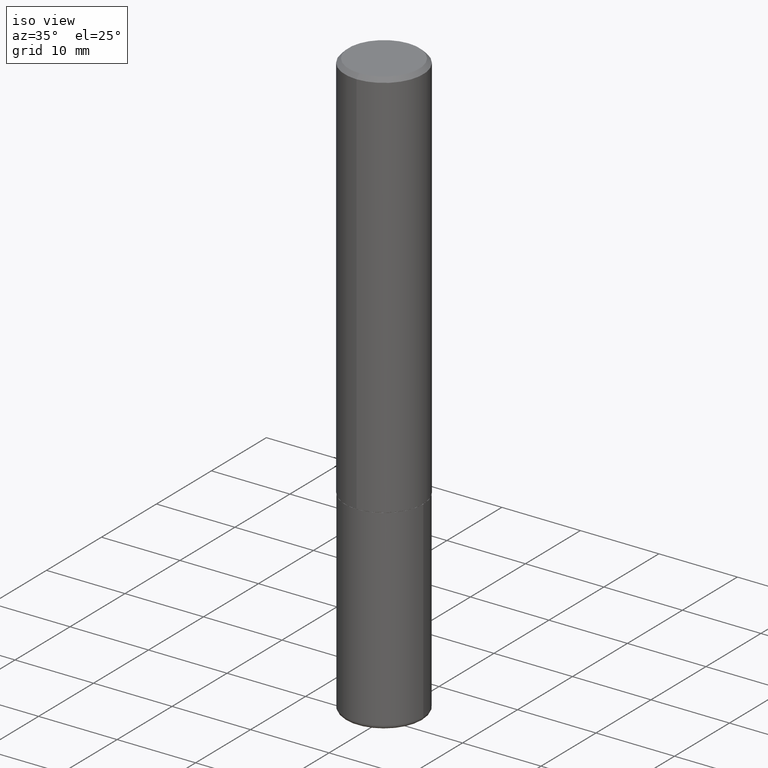
[diagram: clean part render]
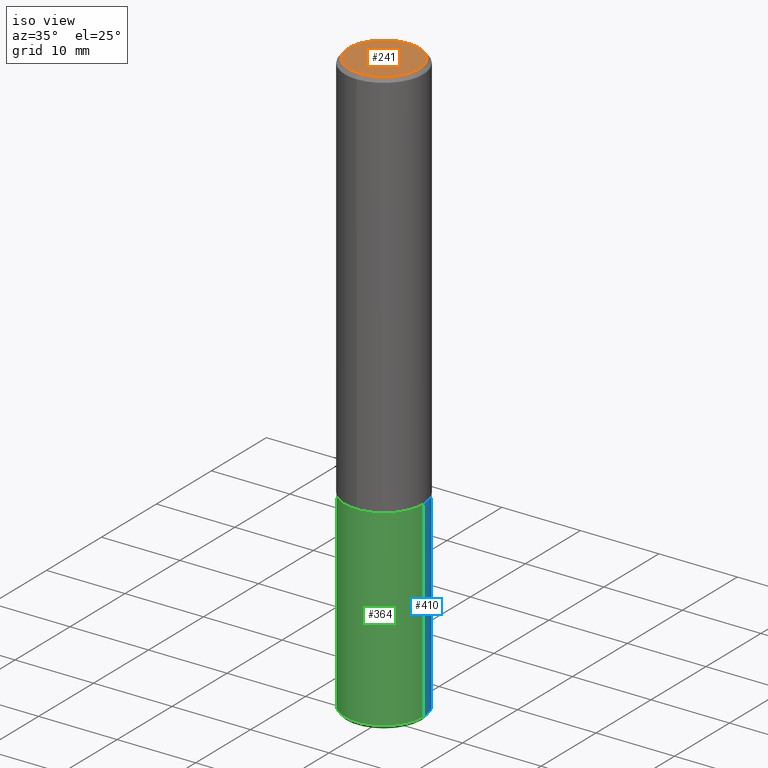
[diagram: same view with three faces highlighted in distinct colors, each labeled with its STEP entity id]
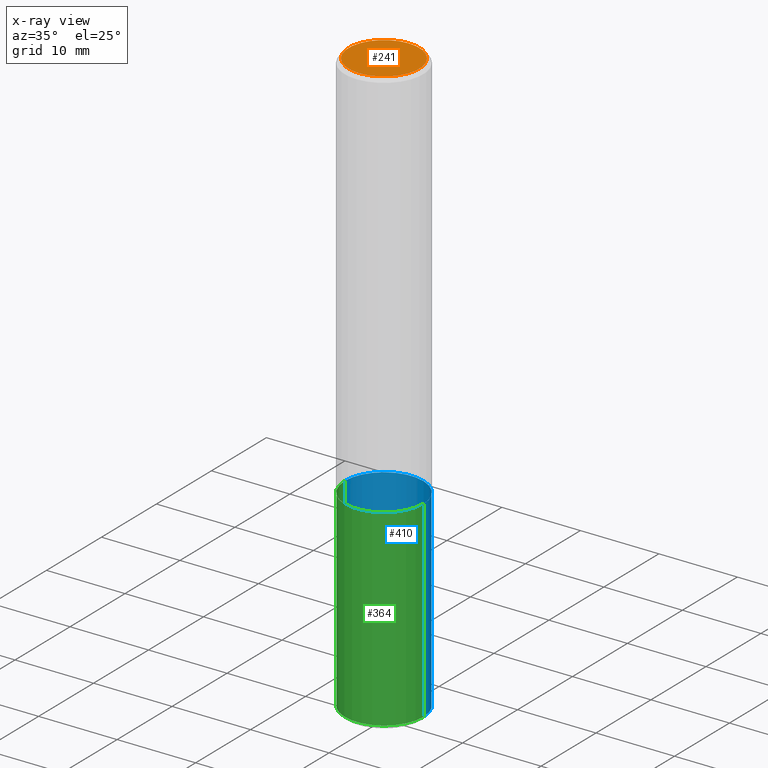
[diagram: x-ray of the same camera — body ghosted, the three highlighted faces saturated]
A machine part, iso view with three faces highlighted in distinct colors.
The next image is the same camera in x-ray (body ghosted, the three faces saturated) — at least one of them is partly hidden behind the body in this view.
Their STEP definitions:

[orange] entity #241 — the highlighted planar face has unit normal (0, -0, -1).
#38 = DIRECTION ( 'NONE',  ( -2.445268841296851437E-29, 3.491767699944464545E-15, 1.000000000000000000 ) ) ;
#57 = CARTESIAN_POINT ( 'NONE',  ( -1.281884050883609900E-15, -0.1768499999999998407, 8.395324101811677409E-16 ) ) ;
#63 = PLANE ( 'NONE',  #171 ) ;
#66 = CARTESIAN_POINT ( 'NONE',  ( -5.428821863719041386E-45, 7.752188435212310874E-31, 2.220132924459896583E-16 ) ) ;
#88 = EDGE_CURVE ( 'NONE', #235, #104, #124, .T. ) ;
#90 = DIRECTION ( 'NONE',  ( 2.445268841296850876E-29, -3.491767699944464940E-15, -1.000000000000000000 ) ) ;
#104 = VERTEX_POINT ( 'NONE', #185 ) ;
#124 = CIRCLE ( 'NONE', #333, 0.1768499999999998407 ) ;
#139 = AXIS2_PLACEMENT_3D ( 'NONE', #66, #233, #195 ) ;
#167 = ORIENTED_EDGE ( 'NONE', *, *, #88, .T. ) ;
#171 = AXIS2_PLACEMENT_3D ( 'NONE', #189, #90, #378 ) ;
#185 = CARTESIAN_POINT ( 'NONE',  ( 1.304766576325678705E-15, 0.1768499999999998407, -3.955058252891884244E-16 ) ) ;
#186 = FACE_OUTER_BOUND ( 'NONE', #264, .T. ) ;
#189 = CARTESIAN_POINT ( 'NONE',  ( 1.234936949548815012E-15, 0.1768499999999998407, -5.065124715121833152E-16 ) ) ;
#195 = DIRECTION ( 'NONE',  ( -6.982962677686265922E-15, -1.000000000000000000, 3.491767699944464940E-15 ) ) ;
#224 = CARTESIAN_POINT ( 'NONE',  ( -5.428821863719041386E-45, 7.752188435212310874E-31, 2.220132924459896583E-16 ) ) ;
#233 = DIRECTION ( 'NONE',  ( -2.445268841296851437E-29, 3.491767699944464545E-15, 1.000000000000000000 ) ) ;
#235 = VERTEX_POINT ( 'NONE', #57 ) ;
#241 = ADVANCED_FACE ( 'NONE', ( #186 ), #63, .F. ) ;
#264 = EDGE_LOOP ( 'NONE', ( #403, #167 ) ) ;
#274 = CIRCLE ( 'NONE', #139, 0.1768499999999998407 ) ;
#310 = DIRECTION ( 'NONE',  ( -6.982962677686265922E-15, -1.000000000000000000, 3.491767699944464940E-15 ) ) ;
#333 = AXIS2_PLACEMENT_3D ( 'NONE', #224, #38, #310 ) ;
#372 = EDGE_CURVE ( 'NONE', #104, #235, #274, .T. ) ;
#378 = DIRECTION ( 'NONE',  ( 6.982962677686265922E-15, 1.000000000000000000, -3.491767699944464940E-15 ) ) ;
#403 = ORIENTED_EDGE ( 'NONE', *, *, #372, .T. ) ;

[blue] entity #410 — the highlighted cylindrical surface (partial cylindrical patch) has radius 5 mm, axis along (-0, 0, 1).
#5 = VERTEX_POINT ( 'NONE', #256 ) ;
#7 = DIRECTION ( 'NONE',  ( 1.000000000000000000, -6.982962677686267499E-15, 0.000000000000000000 ) ) ;
#23 = CARTESIAN_POINT ( 'NONE',  ( -0.1968499999999999694, 1.398703375343756999E-15, -9.682923725166782276E-30 ) ) ;
#26 = CARTESIAN_POINT ( 'NONE',  ( 7.172804555421624566E-29, -1.024086391496083050E-14, -2.933100000000000041 ) ) ;
#36 = CARTESIAN_POINT ( 'NONE',  ( -0.1968500000000000250, -7.158219089893024104E-15, -1.968499999999999694 ) ) ;
#37 = FACE_OUTER_BOUND ( 'NONE', #368, .T. ) ;
#40 = AXIS2_PLACEMENT_3D ( 'NONE', #367, #335, #7 ) ;
#46 = AXIS2_PLACEMENT_3D ( 'NONE', #395, #389, #268 ) ;
#54 = VECTOR ( 'NONE', #343, 39.37007874015748143 ) ;
#60 = DIRECTION ( 'NONE',  ( 1.000000000000000000, -6.982962677686269866E-15, 0.000000000000000000 ) ) ;
#85 = VERTEX_POINT ( 'NONE', #36 ) ;
#95 = EDGE_CURVE ( 'NONE', #5, #244, #304, .T. ) ;
#113 = VECTOR ( 'NONE', #409, 39.37007874015748143 ) ;
#138 = CIRCLE ( 'NONE', #40, 0.1968500000000000250 ) ;
#161 = CYLINDRICAL_SURFACE ( 'NONE', #46, 0.1968499999999999694 ) ;
#169 = EDGE_CURVE ( 'NONE', #5, #354, #276, .T. ) ;
#197 = EDGE_CURVE ( 'NONE', #354, #85, #138, .T. ) ;
#236 = AXIS2_PLACEMENT_3D ( 'NONE', #26, #411, #60 ) ;
#244 = VERTEX_POINT ( 'NONE', #281 ) ;
#256 = CARTESIAN_POINT ( 'NONE',  ( 0.1968499999999999417, -1.161546011806337053E-14, -2.933100000000000041 ) ) ;
#258 = CARTESIAN_POINT ( 'NONE',  ( 0.1968500000000000250, -8.247577218615273316E-15, -1.968499999999999694 ) ) ;
#268 = DIRECTION ( 'NONE',  ( 1.000000000000000000, -6.982962677686266711E-15, 4.876176775795935793E-29 ) ) ;
#276 = LINE ( 'NONE', #371, #54 ) ;
#281 = CARTESIAN_POINT ( 'NONE',  ( -0.1968499999999999417, -8.842160539617071922E-15, -2.933100000000000041 ) ) ;
#283 = EDGE_CURVE ( 'NONE', #244, #85, #284, .T. ) ;
#284 = LINE ( 'NONE', #23, #113 ) ;
#304 = CIRCLE ( 'NONE', #236, 0.1968499999999999694 ) ;
#311 = ORIENTED_EDGE ( 'NONE', *, *, #95, .T. ) ;
#335 = DIRECTION ( 'NONE',  ( -2.445468806185136597E-29, 3.491481338843145583E-15, 1.000000000000000000 ) ) ;
#343 = DIRECTION ( 'NONE',  ( -2.445468806185136877E-29, 3.491481338843145188E-15, 1.000000000000000000 ) ) ;
#354 = VERTEX_POINT ( 'NONE', #258 ) ;
#366 = ORIENTED_EDGE ( 'NONE', *, *, #169, .F. ) ;
#367 = CARTESIAN_POINT ( 'NONE',  ( 4.813905344975440714E-29, -6.872981015512730918E-15, -1.968499999999999694 ) ) ;
#368 = EDGE_LOOP ( 'NONE', ( #311, #369, #394, #366 ) ) ;
#369 = ORIENTED_EDGE ( 'NONE', *, *, #283, .T. ) ;
#371 = CARTESIAN_POINT ( 'NONE',  ( 0.1968499999999999694, -1.374596203102541411E-15, 9.598753983154298056E-30 ) ) ;
#389 = DIRECTION ( 'NONE',  ( -2.445468806185136597E-29, 3.491481338843145583E-15, 1.000000000000000000 ) ) ;
#394 = ORIENTED_EDGE ( 'NONE', *, *, #197, .F. ) ;
#395 = CARTESIAN_POINT ( 'NONE',  ( 0.000000000000000000, 0.000000000000000000, 0.000000000000000000 ) ) ;
#409 = DIRECTION ( 'NONE',  ( -2.445468806185136877E-29, 3.491481338843145188E-15, 1.000000000000000000 ) ) ;
#410 = ADVANCED_FACE ( 'NONE', ( #37 ), #161, .T. ) ;
#411 = DIRECTION ( 'NONE',  ( -2.445468806185136597E-29, 3.491481338843145583E-15, 1.000000000000000000 ) ) ;

[green] entity #364 — the highlighted cylindrical surface (partial cylindrical patch) has radius 5 mm, axis along (-0, 0, 1).
#5 = VERTEX_POINT ( 'NONE', #256 ) ;
#10 = ORIENTED_EDGE ( 'NONE', *, *, #283, .F. ) ;
#13 = DIRECTION ( 'NONE',  ( 1.000000000000000000, -6.982962677686266711E-15, 4.876176775795935793E-29 ) ) ;
#23 = CARTESIAN_POINT ( 'NONE',  ( -0.1968499999999999694, 1.398703375343756999E-15, -9.682923725166782276E-30 ) ) ;
#34 = AXIS2_PLACEMENT_3D ( 'NONE', #253, #154, #122 ) ;
#36 = CARTESIAN_POINT ( 'NONE',  ( -0.1968500000000000250, -7.158219089893024104E-15, -1.968499999999999694 ) ) ;
#54 = VECTOR ( 'NONE', #343, 39.37007874015748143 ) ;
#62 = DIRECTION ( 'NONE',  ( -2.445468806185136597E-29, 3.491481338843145583E-15, 1.000000000000000000 ) ) ;
#74 = EDGE_LOOP ( 'NONE', ( #10, #277, #145, #232 ) ) ;
#85 = VERTEX_POINT ( 'NONE', #36 ) ;
#113 = VECTOR ( 'NONE', #409, 39.37007874015748143 ) ;
#121 = FACE_OUTER_BOUND ( 'NONE', #74, .T. ) ;
#122 = DIRECTION ( 'NONE',  ( 1.000000000000000000, -6.982962677686269866E-15, 0.000000000000000000 ) ) ;
#145 = ORIENTED_EDGE ( 'NONE', *, *, #169, .T. ) ;
#154 = DIRECTION ( 'NONE',  ( -2.445468806185136597E-29, 3.491481338843145583E-15, 1.000000000000000000 ) ) ;
#166 = EDGE_CURVE ( 'NONE', #85, #354, #208, .T. ) ;
#169 = EDGE_CURVE ( 'NONE', #5, #354, #276, .T. ) ;
#173 = EDGE_CURVE ( 'NONE', #244, #5, #298, .T. ) ;
#179 = AXIS2_PLACEMENT_3D ( 'NONE', #377, #180, #210 ) ;
#180 = DIRECTION ( 'NONE',  ( -2.445468806185136597E-29, 3.491481338843145583E-15, 1.000000000000000000 ) ) ;
#208 = CIRCLE ( 'NONE', #179, 0.1968500000000000250 ) ;
#210 = DIRECTION ( 'NONE',  ( 1.000000000000000000, -6.982962677686267499E-15, 0.000000000000000000 ) ) ;
#232 = ORIENTED_EDGE ( 'NONE', *, *, #166, .F. ) ;
#244 = VERTEX_POINT ( 'NONE', #281 ) ;
#253 = CARTESIAN_POINT ( 'NONE',  ( 7.172804555421624566E-29, -1.024086391496083050E-14, -2.933100000000000041 ) ) ;
#255 = CYLINDRICAL_SURFACE ( 'NONE', #339, 0.1968499999999999694 ) ;
#256 = CARTESIAN_POINT ( 'NONE',  ( 0.1968499999999999417, -1.161546011806337053E-14, -2.933100000000000041 ) ) ;
#258 = CARTESIAN_POINT ( 'NONE',  ( 0.1968500000000000250, -8.247577218615273316E-15, -1.968499999999999694 ) ) ;
#276 = LINE ( 'NONE', #371, #54 ) ;
#277 = ORIENTED_EDGE ( 'NONE', *, *, #173, .T. ) ;
#281 = CARTESIAN_POINT ( 'NONE',  ( -0.1968499999999999417, -8.842160539617071922E-15, -2.933100000000000041 ) ) ;
#283 = EDGE_CURVE ( 'NONE', #244, #85, #284, .T. ) ;
#284 = LINE ( 'NONE', #23, #113 ) ;
#298 = CIRCLE ( 'NONE', #34, 0.1968499999999999694 ) ;
#339 = AXIS2_PLACEMENT_3D ( 'NONE', #342, #62, #13 ) ;
#342 = CARTESIAN_POINT ( 'NONE',  ( 0.000000000000000000, 0.000000000000000000, 0.000000000000000000 ) ) ;
#343 = DIRECTION ( 'NONE',  ( -2.445468806185136877E-29, 3.491481338843145188E-15, 1.000000000000000000 ) ) ;
#354 = VERTEX_POINT ( 'NONE', #258 ) ;
#364 = ADVANCED_FACE ( 'NONE', ( #121 ), #255, .T. ) ;
#371 = CARTESIAN_POINT ( 'NONE',  ( 0.1968499999999999694, -1.374596203102541411E-15, 9.598753983154298056E-30 ) ) ;
#377 = CARTESIAN_POINT ( 'NONE',  ( 4.813905344975440714E-29, -6.872981015512730918E-15, -1.968499999999999694 ) ) ;
#409 = DIRECTION ( 'NONE',  ( -2.445468806185136877E-29, 3.491481338843145188E-15, 1.000000000000000000 ) ) ;